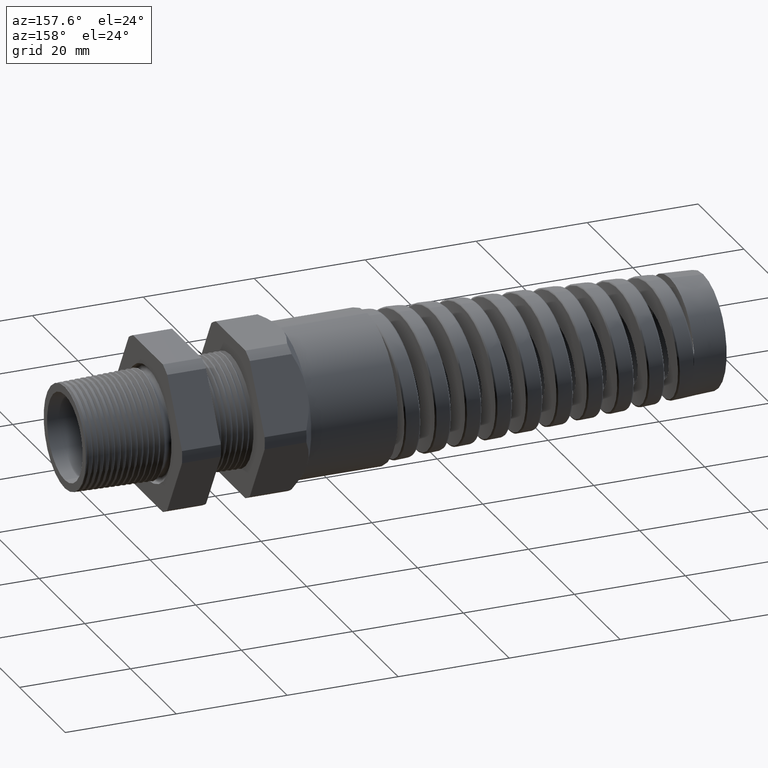
[diagram: clean part render]
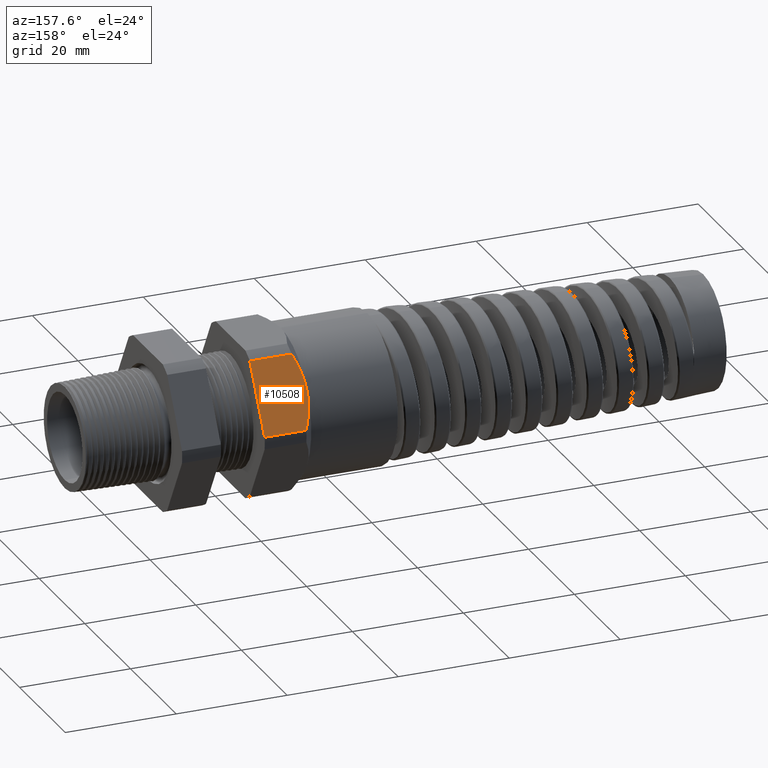
[diagram: same view with one face highlighted and labeled with its STEP entity id]
A machine part, auxiliary view. The second image highlights one B-rep face of the part: STEP entity #10508.
In plain terms, the highlighted planar face has unit normal (0, 0.866, 0.5).
Its self-contained STEP definition (entity closure, byte-faithful):
#9492 = CARTESIAN_POINT ( 'NONE',  ( -1.250551181102362200, 0.4589934640057525300, 0.2650000000000001200 ) ) ;
#10445 = EDGE_CURVE ( 'NONE', #10446, #10447, #14643, .T. ) ;
#10446 = VERTEX_POINT ( 'NONE', #14635 ) ;
#10447 = VERTEX_POINT ( 'NONE', #14634 ) ;
#10493 = EDGE_CURVE ( 'NONE', #10512, #10446, #14769, .T. ) ;
#10508 = ADVANCED_FACE ( 'NONE', ( #14795 ), #14794, .T. ) ;
#10509 = EDGE_LOOP ( 'NONE', ( #10510, #10514, #10516, #10518, #10519 ) ) ;
#10510 = ORIENTED_EDGE ( 'NONE', *, *, #10511, .T. ) ;
#10511 = EDGE_CURVE ( 'NONE', #10512, #10513, #14789, .T. ) ;
#10512 = VERTEX_POINT ( 'NONE', #14785 ) ;
#10513 = VERTEX_POINT ( 'NONE', #14845 ) ;
#10514 = ORIENTED_EDGE ( 'NONE', *, *, #10515, .T. ) ;
#10515 = EDGE_CURVE ( 'NONE', #10513, #18457, #14844, .T. ) ;
#10516 = ORIENTED_EDGE ( 'NONE', *, *, #10517, .T. ) ;
#10517 = EDGE_CURVE ( 'NONE', #18457, #10447, #14843, .T. ) ;
#10518 = ORIENTED_EDGE ( 'NONE', *, *, #10445, .F. ) ;
#10519 = ORIENTED_EDGE ( 'NONE', *, *, #10493, .F. ) ;
#14634 = CARTESIAN_POINT ( 'NONE',  ( -1.192251181102362600, 0.3313250556190259800, 0.4861281698472629800 ) ) ;
#14635 = CARTESIAN_POINT ( 'NONE',  ( -0.8962204724409449400, 0.3313250556190259800, 0.4861281698472629800 ) ) ;
#14636 = DIRECTION ( 'NONE',  ( -1.000000000000000000, 0.0000000000000000000, 0.0000000000000000000 ) ) ;
#14637 = VECTOR ( 'NONE', #14636, 39.37007874015748100 ) ;
#14638 = CARTESIAN_POINT ( 'NONE',  ( 0.2800000000000000300, 0.3313250556190259800, 0.4861281698472629800 ) ) ;
#14643 = LINE ( 'NONE', #14638, #14637 ) ;
#14766 = DIRECTION ( 'NONE',  ( 0.0000000000000000000, -0.5000000000000001100, 0.8660254037844386000 ) ) ;
#14767 = VECTOR ( 'NONE', #14766, 39.37007874015748100 ) ;
#14768 = CARTESIAN_POINT ( 'NONE',  ( -0.8962204724409449400, 0.5577434640057525900, 0.09395998275257340400 ) ) ;
#14769 = LINE ( 'NONE', #14768, #14767 ) ;
#14785 = CARTESIAN_POINT ( 'NONE',  ( -0.8962204724409449400, 0.5866618723924791300, 0.04387183015273708700 ) ) ;
#14786 = DIRECTION ( 'NONE',  ( -1.000000000000000000, 0.0000000000000000000, 0.0000000000000000000 ) ) ;
#14787 = VECTOR ( 'NONE', #14786, 39.37007874015748100 ) ;
#14788 = CARTESIAN_POINT ( 'NONE',  ( 0.2800000000000000300, 0.5866618723924791300, 0.04387183015273708700 ) ) ;
#14789 = LINE ( 'NONE', #14788, #14787 ) ;
#14790 = DIRECTION ( 'NONE',  ( 0.0000000000000000000, -0.5000000000000001100, 0.8660254037844386000 ) ) ;
#14791 = DIRECTION ( 'NONE',  ( 0.0000000000000000000, 0.8660254037844386000, 0.5000000000000001100 ) ) ;
#14792 = CARTESIAN_POINT ( 'NONE',  ( 0.2800000000000000300, 0.3313250556190259800, 0.4861281698472629800 ) ) ;
#14793 = AXIS2_PLACEMENT_3D ( 'NONE', #14792, #14791, #14790 ) ;
#14794 = PLANE ( 'NONE',  #14793 ) ;
#14795 = FACE_OUTER_BOUND ( 'NONE', #10509, .T. ) ;
#14825 = CARTESIAN_POINT ( 'NONE',  ( -1.192251181102362600, 0.3313250556190259800, 0.4861281698472629800 ) ) ;
#14826 = CARTESIAN_POINT ( 'NONE',  ( -1.209902898097438500, 0.3516599709661861200, 0.4509070632983697700 ) ) ;
#14827 = CARTESIAN_POINT ( 'NONE',  ( -1.224680733166497900, 0.3726775389205836400, 0.4145035677498212800 ) ) ;
#14828 = CARTESIAN_POINT ( 'NONE',  ( -1.244974150190778500, 0.4152540171503035200, 0.3407589442485964800 ) ) ;
#14829 = CARTESIAN_POINT ( 'NONE',  ( -1.250551181102362200, 0.4369033769668390100, 0.3032611530950170600 ) ) ;
#14830 = CARTESIAN_POINT ( 'NONE',  ( -1.250551181102362200, 0.4589934640057525300, 0.2650000000000001200 ) ) ;
#14832 = CARTESIAN_POINT ( 'NONE',  ( -1.250551181102362200, 0.4589934640057525300, 0.2650000000000001200 ) ) ;
#14833 = CARTESIAN_POINT ( 'NONE',  ( -1.250551181102362200, 0.4645197752363699500, 0.2554281481701323700 ) ) ;
#14834 = CARTESIAN_POINT ( 'NONE',  ( -1.250201454617269700, 0.4700966316160714600, 0.2457687495739747900 ) ) ;
#14835 = CARTESIAN_POINT ( 'NONE',  ( -1.248812408746605700, 0.4811768528785423400, 0.2265772433882700400 ) ) ;
#14836 = CARTESIAN_POINT ( 'NONE',  ( -1.247777632106220800, 0.4866745645865462900, 0.2170549273846411300 ) ) ;
#14837 = CARTESIAN_POINT ( 'NONE',  ( -1.243714151058408900, 0.5030481801450604800, 0.1886949933336941600 ) ) ;
#14838 = CARTESIAN_POINT ( 'NONE',  ( -1.239725996593368200, 0.5138045271803670700, 0.1700644537646998100 ) ) ;
#14839 = CARTESIAN_POINT ( 'NONE',  ( -1.224453382401947900, 0.5456613404998794700, 0.1148868345280678700 ) ) ;
#14840 = CARTESIAN_POINT ( 'NONE',  ( -1.209881065959919700, 0.5663521078376415600, 0.07904937425147702500 ) ) ;
#14841 = CARTESIAN_POINT ( 'NONE',  ( -1.192251181102362200, 0.5866618723924791300, 0.04387183015273708700 ) ) ;
#14843 = B_SPLINE_CURVE_WITH_KNOTS ( 'NONE', 3,
 ( #14830, #14829, #14828, #14827, #14826, #14825 ),
 .UNSPECIFIED., .F., .F.,
 ( 4, 2, 4 ),
 ( 0.006656663749350004100, 0.009982589261723354800, 0.01330851477409670700 ),
 .UNSPECIFIED. ) ;
#14844 = B_SPLINE_CURVE_WITH_KNOTS ( 'NONE', 3,
 ( #14841, #14840, #14839, #14838, #14837, #14836, #14835, #14834, #14833, #14832 ),
 .UNSPECIFIED., .F., .F.,
 ( 4, 2, 2, 2, 4 ),
 ( 2.483250567242142900E-007, 0.003328456037203363300, 0.004992559893276682400, 0.005824611821313342400, 0.006656663749350004100 ),
 .UNSPECIFIED. ) ;
#14845 = CARTESIAN_POINT ( 'NONE',  ( -1.192251181102362200, 0.5866618723924791300, 0.04387183015273708700 ) ) ;
#18457 = VERTEX_POINT ( 'NONE', #9492 ) ;